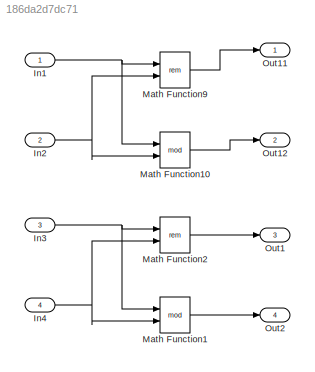
MODEL slx_186da2d7dc71
KIND model
CONFIG AbsTol = auto
CONFIG EnableMultiTasking = on
CONFIG FixedStep = 0.200000
CONFIG MaxStep = auto
CONFIG MinStep = auto
CONFIG RelTol = 1e-3
CONFIG SampleTimeConstraint = Unconstrained
CONFIG Solver = FixedStepDiscrete
CONFIG SolverName = FixedStepDiscrete
CONFIG StartTime = 0.0
CONFIG StopTime = 10.0
BLOCK [Inport] In1
  IconDisplay = Port number
BLOCK [Inport] In2
  IconDisplay = Port number
  Port = 2
BLOCK [Inport] In3
  IconDisplay = Port number
  OutDataTypeStr = int32
  Port = 3
BLOCK [Inport] In4
  IconDisplay = Port number
  OutDataTypeStr = int32
  Port = 4
BLOCK [Math] Math Function1
  Operator = mod
  Ports = [2, 1]
BLOCK [Math] Math Function10
  Operator = mod
  Ports = [2, 1]
BLOCK [Math] Math Function2
  Operator = rem
  Ports = [2, 1]
BLOCK [Math] Math Function9
  Operator = rem
  Ports = [2, 1]
BLOCK [Outport] Out1
  IconDisplay = Port number
  Port = 3
BLOCK [Outport] Out11
  IconDisplay = Port number
BLOCK [Outport] Out12
  IconDisplay = Port number
  Port = 2
BLOCK [Outport] Out2
  IconDisplay = Port number
  Port = 4
NET In1:1 -> Math Function10:1, Math Function9:1
NET In2:1 -> Math Function10:2, Math Function9:2
NET In3:1 -> Math Function1:1, Math Function2:1
NET In4:1 -> Math Function1:2, Math Function2:2
LINE Math Function10:1 -> Out12:1
LINE Math Function1:1 -> Out2:1
LINE Math Function2:1 -> Out1:1
LINE Math Function9:1 -> Out11:1
note: NET lines group one-source signal fan-out (src -> all destinations, sorted); 1:1 wires keep LINE
